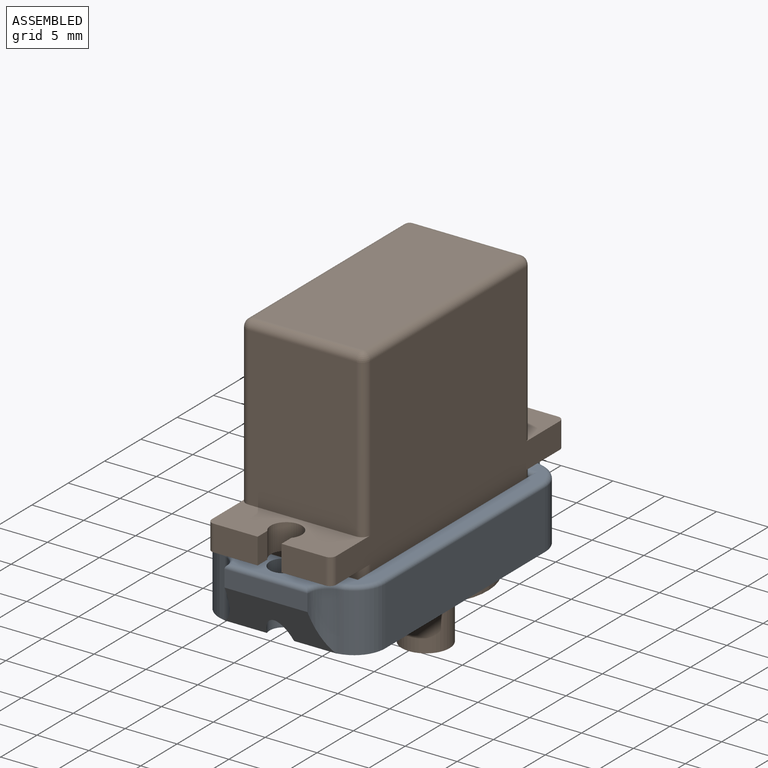
[diagram: assembled view]
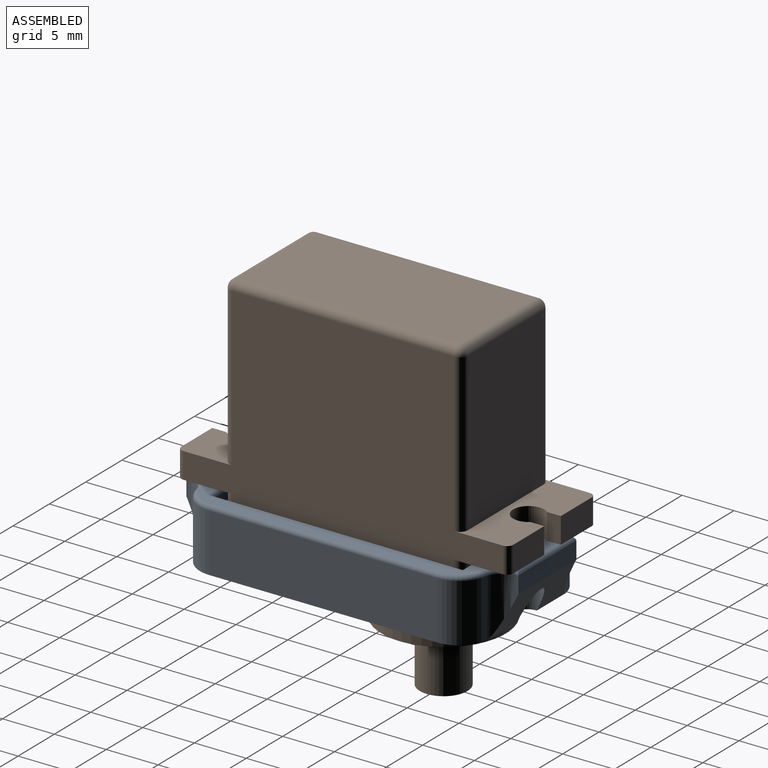
[diagram: assembled view, second angle]
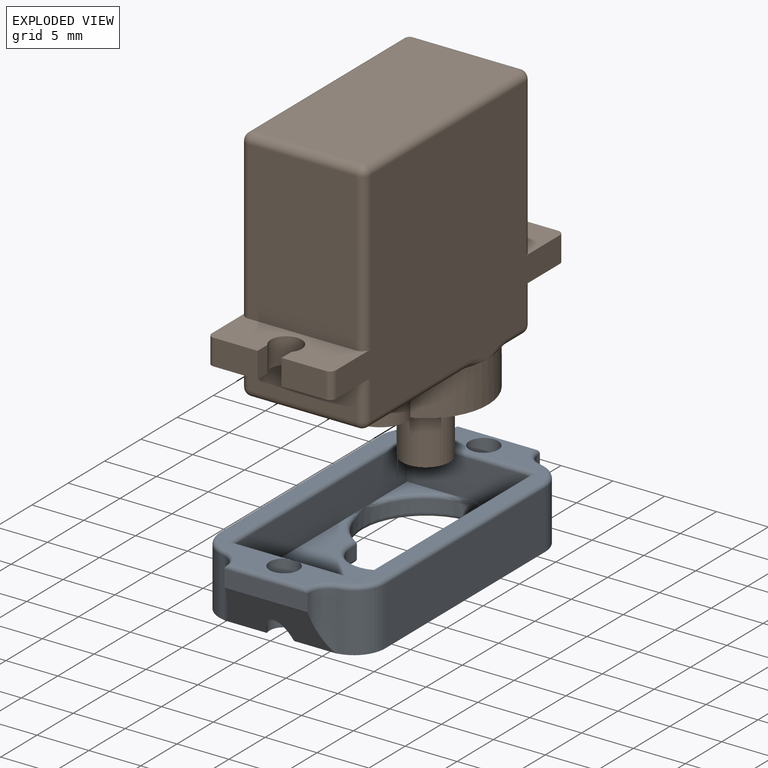
[diagram: exploded view]
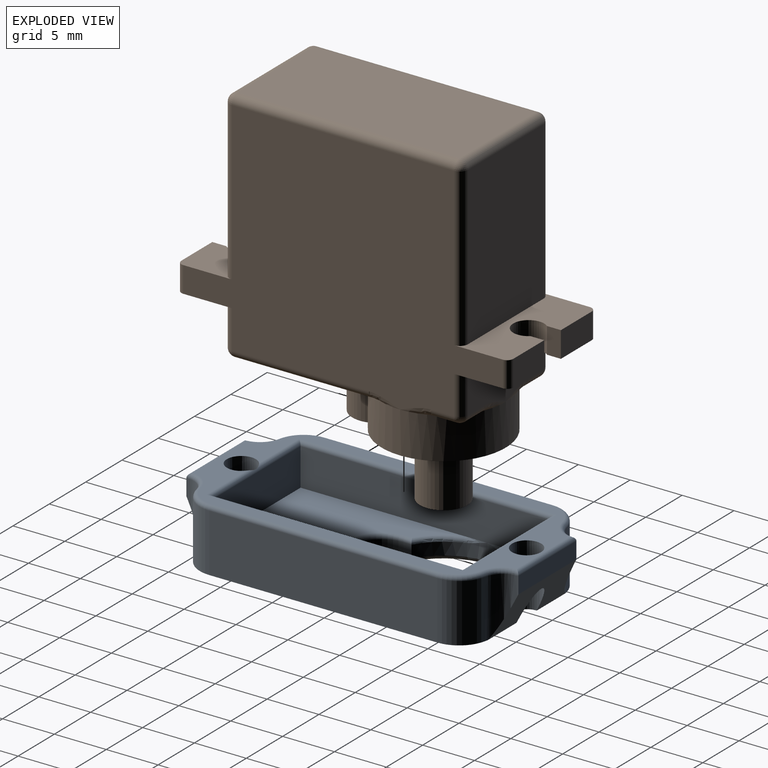
[diagram: exploded view, second angle]
ASSEMBLY  parts=2 mates=2
PART A: 70 faces, bbox 16.8x32.3x6.3 mm
  f0: plane 28x16mm, normal (0,0,-1), area 286.5mm2, adj f4,f5,f28,f29,f30,f31,f38,f39
  f1: plane 15.77x12mm, normal (0,0,1), area 135.3mm2, adj f7,f8,f9,f16,f17,f18,f19,f20
  f2: plane 3.77x3.77mm, normal (0,0,1), area 5mm2, adj f6,f9,f26
  f3: plane 31.2x15.2mm, normal (0,0,1), area 111.2mm2, adj f40,f41,f50,f51,f52,f53,f55,f57
  f4: plane 22x5.6mm, normal (-1,0,0), area 123.2mm2, adj f0,f42,f43,f63
  f5: plane 22x5.6mm, normal (1,0,0), area 123.2mm2, adj f0,f44,f45,f60
  f6: plane 12.23x3.83mm, normal (0,-1,0), area 43.2mm2, adj f2,f7,f9,f10,f24,f25,f50
  f7: plane 24.29x3.89mm, normal (1,0,0), area 86.4mm2, adj f1,f6,f8,f10,f21,f22,f51
  f8: plane 12x3.6mm, normal (0,1,0), area 43.2mm2, adj f1,f7,f9,f53
  f9: plane 24.29x3.89mm, normal (-1,0,0), area 86.4mm2, adj f1,f2,f6,f8,f15,f27,f52
  f10: plane 3.77x3.77mm, normal (0,0,1), area 5mm2, adj f6,f7,f23
  f11: plane 1.2x0.8mm, normal (1,0,0), area 1mm2, adj f12,f14,f19,f29
  f12: cylinder r=3mm len=6mm, axis (0,0,1), area 11.3mm2, adj f11,f13,f18,f28
  f13: plane 1.2x0.8mm, normal (-1,0,0), area 1mm2, adj f12,f14,f17,f30
  f14: cylinder r=6mm len=12mm, axis (0,0,1), area 40.3mm2, adj f11,f13,f15,f16,f20,f21,f22,f23
  f15: bspline ~2.39x0.46mm, area 0.4mm2, adj f9,f14,f16
  f16: torus R=6.4mm, axis (0,0,1), area 2.6mm2, adj f1,f14,f15,f17
  f17: cylinder r=0.4mm len=0.8mm, axis (0,-1,0), area 0.4mm2, adj f1,f13,f16,f18
  f18: torus R=3.4mm, axis (0,0,1), area 6.2mm2, adj f1,f12,f17,f19
  f19: cylinder r=0.4mm len=0.8mm, axis (0,1,0), area 0.4mm2, adj f1,f11,f18,f20
  f20: torus R=6.4mm, axis (0,0,1), area 2.6mm2, adj f1,f14,f19,f21
  f21: bspline ~2.39x0.46mm, area 0.4mm2, adj f7,f14,f20
  f22: bspline ~2.39x0.46mm, area 0.4mm2, adj f7,f14,f23
  f23: torus R=6.4mm, axis (0,0,1), area 3.3mm2, adj f10,f14,f22,f24
  f24: bspline ~2.39x0.46mm, area 0.4mm2, adj f6,f14,f23
  f25: bspline ~2.39x0.46mm, area 0.4mm2, adj f6,f14,f26
  f26: torus R=6.4mm, axis (0,0,1), area 3.3mm2, adj f2,f14,f25,f27
  f27: bspline ~2.39x0.46mm, area 0.4mm2, adj f9,f14,f26
  f28: torus R=3.4mm, axis (0,0,1), area 6.2mm2, adj f0,f12,f29,f30
  f29: cylinder r=0.4mm len=0.8mm, axis (0,1,0), area 0.4mm2, adj f0,f11,f28,f31
  f30: cylinder r=0.4mm len=0.8mm, axis (0,-1,0), area 0.4mm2, adj f0,f13,f28,f31
  f31: torus R=6.4mm, axis (0,0,1), area 20.1mm2, adj f0,f14,f29,f30
  f32: plane 1.8x0.1mm, normal (1,0,0), area 0.2mm2, adj f33,f38,f48,f54
  f33: plane 8x1.6mm, normal (0,1,0), area 12.8mm2, adj f32,f34,f38,f57
  f34: plane 1.8x0.1mm, normal (-1,0,0), area 0.2mm2, adj f33,f38,f49,f56
  f35: plane 1.8x0.1mm, normal (1,0,0), area 0.2mm2, adj f37,f39,f46,f65
  f36: plane 1.8x0.1mm, normal (-1,0,0), area 0.2mm2, adj f37,f39,f47,f68
  f37: plane 8x1.6mm, normal (0,-1,0), area 12.8mm2, adj f35,f36,f39,f67
  f38: plane 10.75x4mm, normal (0,0.89,-0.45), area 32mm2, adj f0,f32,f33,f34,f41,f48,f49
  f39: plane 10.75x4mm, normal (0,-0.89,-0.45), area 35.1mm2, adj f0,f35,f36,f37,f40,f46,f47
  f40: cylinder r=1.4mm len=6mm, axis (0,0,1), area 48.8mm2, adj f0,f3,f39,f53
  f41: cylinder r=1.4mm len=6mm, axis (0,0,1), area 44.9mm2, adj f0,f3,f38
  f42: cylinder r=3mm len=5.6mm, axis (0,0,1), area 23mm2, adj f0,f4,f49,f61
  f43: cylinder r=3mm len=5.6mm, axis (0,0,-1), area 23mm2, adj f0,f4,f47,f66
  f44: cylinder r=3mm len=5.6mm, axis (0,0,1), area 23mm2, adj f0,f5,f46,f62
  f45: cylinder r=3mm len=5.6mm, axis (0,0,-1), area 23mm2, adj f0,f5,f48,f58
  f46: cylinder r=2mm len=5.6mm, axis (0,0,1), area 11.3mm2, adj f0,f35,f39,f44,f64
  f47: cylinder r=2mm len=5.6mm, axis (0,0,-1), area 11.3mm2, adj f0,f36,f39,f43,f69
  f48: cylinder r=2mm len=5.6mm, axis (0,0,-1), area 11.3mm2, adj f0,f32,f38,f45,f55
  f49: cylinder r=2mm len=5.6mm, axis (0,0,1), area 11.3mm2, adj f0,f34,f38,f42,f59
  f50: cylinder r=0.4mm len=12.8mm, axis (1,0,0), area 7.8mm2, adj f3,f6,f51,f52
  f51: cylinder r=0.4mm len=24.8mm, axis (0,1,0), area 15.3mm2, adj f3,f7,f50,f53
  f52: cylinder r=0.4mm len=24.8mm, axis (0,-1,0), area 15.3mm2, adj f3,f9,f50,f53
  f53: cylinder r=0.4mm len=12.8mm, axis (-1,0,0), area 7.4mm2, adj f3,f8,f40,f51,f52
  f54: cylinder r=0.4mm len=0.27mm, axis (0,-1,0), area 0mm2, adj f32,f55,f57
  f55: torus R=2.4mm, axis (0,0,1), area 1.8mm2, adj f3,f48,f54,f57,f58
  f56: cylinder r=0.4mm len=0.27mm, axis (0,-1,0), area 0mm2, adj f34,f57,f59
  f57: cylinder r=0.4mm len=8mm, axis (-1,0,0), area 4.8mm2, adj f3,f33,f54,f55,f56,f59
  f58: torus R=2.6mm, axis (0,0,1), area 2.5mm2, adj f3,f45,f55,f60
  f59: torus R=2.4mm, axis (0,0,1), area 1.8mm2, adj f3,f49,f56,f57,f61
  f60: cylinder r=0.4mm len=22mm, axis (0,-1,0), area 13.8mm2, adj f3,f5,f58,f62
  f61: torus R=2.6mm, axis (0,0,1), area 2.5mm2, adj f3,f42,f59,f63
  f62: torus R=2.6mm, axis (0,0,1), area 2.5mm2, adj f3,f44,f60,f64
  f63: cylinder r=0.4mm len=22mm, axis (0,1,0), area 13.8mm2, adj f3,f4,f61,f66
  f64: torus R=2.4mm, axis (0,0,1), area 1.8mm2, adj f3,f46,f62,f65,f67
  f65: cylinder r=0.4mm len=0.27mm, axis (0,-1,0), area 0mm2, adj f35,f64,f67
  f66: torus R=2.6mm, axis (0,0,1), area 2.5mm2, adj f3,f43,f63,f69
  f67: cylinder r=0.4mm len=8mm, axis (1,0,0), area 4.8mm2, adj f3,f37,f64,f65,f68,f69
  f68: cylinder r=0.4mm len=0.27mm, axis (0,-1,0), area 0mm2, adj f36,f67,f69
  f69: torus R=2.4mm, axis (0,0,1), area 1.8mm2, adj f3,f47,f66,f67,f68
PART B: 66 faces, bbox 12.3x32.3x33.3 mm
  f0: plane 4.25x2.5mm, normal (0,1,0), area 10.6mm2, adj f2,f14,f25,f63
  f1: plane 4.25x2.5mm, normal (0,-1,0), area 10.6mm2, adj f3,f13,f26,f65
  f2: plane 12x5.3mm, normal (0,0,1), area 44.8mm2, adj f0,f7,f9,f11,f15,f23,f24,f25
  f3: plane 12x5.3mm, normal (0,0,-1), area 44.8mm2, adj f1,f7,f8,f9,f12,f26,f27,f28
  f4: plane 13.21x10.4mm, normal (0,0,1), area 103mm2, adj f18,f19,f43,f46,f48
  f5: plane 2.21x2.21mm, normal (0,0,1), area 2mm2, adj f18,f30,f34
  f6: plane 15.2x10.4mm, normal (0,1,0), area 158.1mm2, adj f14,f55,f59,f61
  f7: plane 31.05x22.45mm, normal (-1,0,0), area 483.3mm2, adj f2,f3,f13,f14,f36,f39,f40,f41
  f8: plane 15.2x10.4mm, normal (0,-1,0), area 158.1mm2, adj f3,f50,f52,f53
  f9: plane 31.04x22.44mm, normal (1,0,0), area 483.3mm2, adj f2,f3,f13,f14,f31,f33,f34,f45
  f10: plane 21.4x10.4mm, normal (0,0,-1), area 222.6mm2, adj f53,f54,f58,f59
  f11: plane 4.25x2.5mm, normal (0,1,0), area 10.6mm2, adj f2,f14,f24,f62
  f12: plane 4.25x2.5mm, normal (0,-1,0), area 10.6mm2, adj f3,f13,f28,f64
  f13: plane 12x5.3mm, normal (0,0,1), area 44.8mm2, adj f1,f7,f9,f12,f16,f26,f27,f28
  f14: plane 12x5.3mm, normal (0,0,-1), area 44.8mm2, adj f0,f6,f7,f9,f11,f23,f24,f25
  f15: plane 10.55x4.65mm, normal (0,1,0), area 40.3mm2, adj f2,f29,f30,f31,f35,f36,f37
  f16: plane 10.4x3.7mm, normal (0,-1,0), area 38.5mm2, adj f13,f42,f45,f46
  f17: plane 2.21x2.21mm, normal (0,0,1), area 2mm2, adj f18,f37,f40
  f18: cylinder r=6mm len=12mm, axis (0,0,-1), area 131.3mm2, adj f4,f5,f17,f19,f20,f29,f33,f35
  f19: cylinder r=2.5mm len=5mm, axis (0,0,-1), area 37.8mm2, adj f4,f18,f20
  f20: plane 14.8x12mm, normal (0,0,1), area 108.6mm2, adj f18,f19,f21
  f21: cylinder r=2.3mm len=6mm, axis (0,0,-1), area 86.7mm2, adj f20,f22
  f22: plane 4.6x4.6mm, normal (0,0,1), area 16.6mm2, adj f21
  f23: cylinder r=1.5mm len=3mm, axis (0,0,1), area 17mm2, adj f2,f14,f24,f25
  f24: plane 2.5x1.34mm, normal (1,0,0), area 3.3mm2, adj f2,f11,f14,f23
  f25: plane 2.5x1.34mm, normal (-1,0,0), area 3.3mm2, adj f0,f2,f14,f23
  f26: plane 2.5x1.34mm, normal (-1,0,0), area 3.3mm2, adj f1,f3,f13,f27
  f27: cylinder r=1.5mm len=3mm, axis (0,0,1), area 17mm2, adj f3,f13,f26,f28
  f28: plane 2.5x1.34mm, normal (1,0,0), area 3.3mm2, adj f3,f12,f13,f27
  f29: bspline ~3.36x0.98mm, area 1.6mm2, adj f15,f18,f30
  f30: cylinder r=0.8mm len=2.21mm, axis (1,0,0), area 2.8mm2, adj f5,f15,f29,f32
  f31: cylinder r=0.8mm len=3.7mm, axis (0,0,-1), area 4.6mm2, adj f2,f9,f15,f32
  f32: sphere r=0.8mm, area 1mm2, adj f30,f31,f34
  f33: bspline ~3.36x0.98mm, area 1.2mm2, adj f9,f18,f34
  f34: cylinder r=0.8mm len=2.21mm, axis (0,-1,0), area 2.8mm2, adj f5,f9,f32,f33
  f35: bspline ~3.36x0.98mm, area 1.6mm2, adj f15,f18,f37
  f36: cylinder r=0.8mm len=3.7mm, axis (0,0,1), area 4.6mm2, adj f2,f7,f15,f38
  f37: cylinder r=0.8mm len=2.21mm, axis (1,0,0), area 2.8mm2, adj f15,f17,f35,f38
  f38: sphere r=0.8mm, area 1mm2, adj f36,f37,f40
  f39: bspline ~3.36x0.98mm, area 1.2mm2, adj f7,f18,f40
  f40: cylinder r=0.8mm len=2.21mm, axis (0,1,0), area 2.8mm2, adj f7,f17,f38,f39
  f41: bspline ~3.36x0.98mm, area 1.2mm2, adj f7,f18,f43
  f42: cylinder r=0.8mm len=3.7mm, axis (0,0,-1), area 4.6mm2, adj f7,f13,f16,f44
  f43: cylinder r=0.8mm len=13.21mm, axis (0,1,0), area 16.6mm2, adj f4,f7,f41,f44
  f44: sphere r=0.8mm, area 1mm2, adj f42,f43,f46
  f45: cylinder r=0.8mm len=3.7mm, axis (0,0,1), area 4.6mm2, adj f9,f13,f16,f47
  f46: cylinder r=0.8mm len=10.4mm, axis (-1,0,0), area 13.1mm2, adj f4,f16,f44,f47
  f47: sphere r=0.8mm, area 1mm2, adj f45,f46,f48
  f48: cylinder r=0.8mm len=13.21mm, axis (0,-1,0), area 16.6mm2, adj f4,f9,f47,f49
  f49: bspline ~3.36x0.98mm, area 1.2mm2, adj f9,f18,f48
  f50: cylinder r=0.8mm len=15.2mm, axis (0,0,1), area 19.1mm2, adj f3,f8,f9,f51
  f51: sphere r=0.8mm, area 1mm2, adj f50,f53,f54
  f52: cylinder r=0.8mm len=15.2mm, axis (0,0,-1), area 19.1mm2, adj f3,f7,f8,f56
  f53: cylinder r=0.8mm len=10.4mm, axis (1,0,0), area 13.1mm2, adj f8,f10,f51,f56
  f54: cylinder r=0.8mm len=21.4mm, axis (0,1,0), area 26.9mm2, adj f9,f10,f51,f57
  f55: cylinder r=0.8mm len=15.2mm, axis (0,0,-1), area 19.1mm2, adj f6,f9,f14,f57
  f56: sphere r=0.8mm, area 1mm2, adj f52,f53,f58
  f57: sphere r=0.8mm, area 1mm2, adj f54,f55,f59
  f58: cylinder r=0.8mm len=21.4mm, axis (0,-1,0), area 26.9mm2, adj f7,f10,f56,f60
  f59: cylinder r=0.8mm len=10.4mm, axis (-1,0,0), area 13.1mm2, adj f6,f10,f57,f60
  f60: sphere r=0.8mm, area 1mm2, adj f58,f59,f61
  f61: cylinder r=0.8mm len=15.2mm, axis (0,0,1), area 19.1mm2, adj f6,f7,f14,f60
  f62: cylinder r=0.6mm len=2.5mm, axis (0,0,1), area 2.4mm2, adj f2,f7,f11,f14
  f63: cylinder r=0.6mm len=2.5mm, axis (0,0,-1), area 2.4mm2, adj f0,f2,f9,f14
  f64: cylinder r=0.6mm len=2.5mm, axis (0,0,-1), area 2.4mm2, adj f3,f7,f12,f13
  f65: cylinder r=0.6mm len=2.5mm, axis (0,0,1), area 2.4mm2, adj f1,f3,f9,f13
PLACE A t=(0.98,-9.29,3.22)mm fixed
PLACE B rot(axis=(0,1,0),180deg) t=(0.98,-6.29,28.22)mm
MATE planar B.f4 <-> A.f1  axis (0,0,-1) through (0.98,-0.33,5.22)mm
MATE slider A.f14 <-> B.f18  axis (0,0,-1) through (0.98,10.71,3.22)mm
